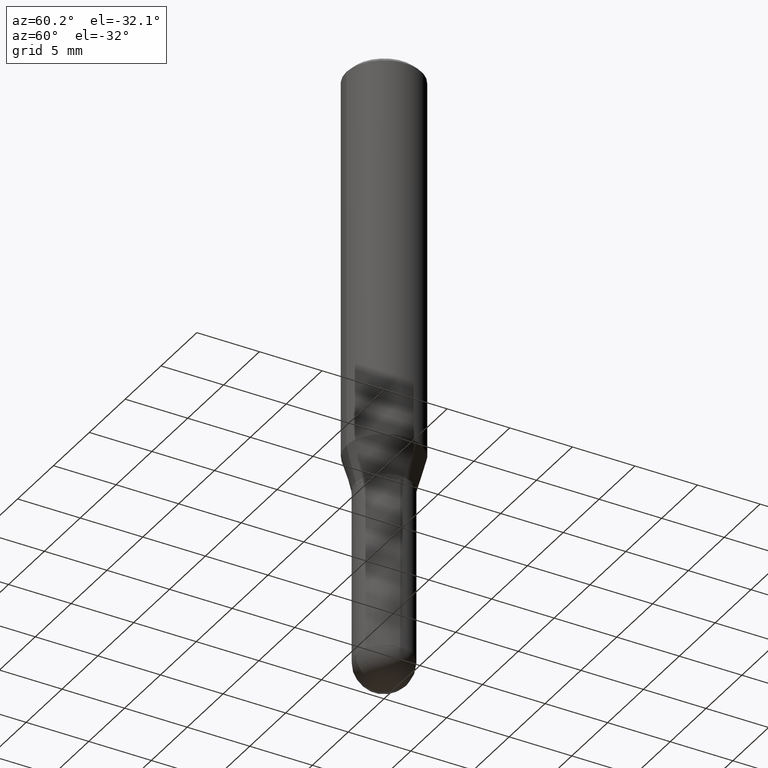
[diagram: clean part render]
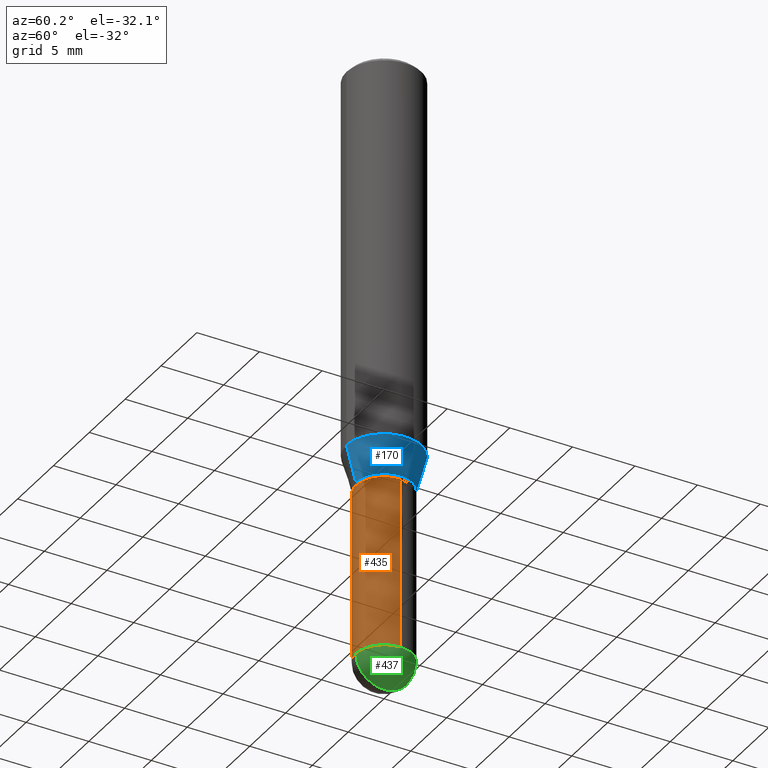
[diagram: same view with three faces highlighted in distinct colors, each labeled with its STEP entity id]
A machine part, auxiliary view with three faces highlighted in distinct colors.
Their STEP definitions:

[orange] entity #435 — the highlighted cylindrical surface (edge-blend (fillet) strip) has radius 2.2504 mm, axis along (-0, 0, 1).
#6 = CARTESIAN_POINT ( 'NONE',  ( -0.08859999999999999820, -4.989125480649882450E-15, -1.338600000000000012 ) ) ;
#7 = ORIENTED_EDGE ( 'NONE', *, *, #15, .T. ) ;
#15 = EDGE_CURVE ( 'NONE', #463, #63, #157, .T. ) ;
#18 = CARTESIAN_POINT ( 'NONE',  ( 0.08859999999999999820, -5.292387413418437689E-15, -1.338600000000000012 ) ) ;
#37 = VERTEX_POINT ( 'NONE', #507 ) ;
#38 = LINE ( 'NONE', #152, #354 ) ;
#55 = EDGE_CURVE ( 'NONE', #72, #383, #240, .T. ) ;
#63 = VERTEX_POINT ( 'NONE', #129 ) ;
#64 = AXIS2_PLACEMENT_3D ( 'NONE', #119, #345, #276 ) ;
#66 = LINE ( 'NONE', #382, #123 ) ;
#72 = VERTEX_POINT ( 'NONE', #6 ) ;
#84 = DIRECTION ( 'NONE',  ( 1.000000000000000000, -6.982962677686270655E-15, 0.000000000000000000 ) ) ;
#93 = EDGE_CURVE ( 'NONE', #63, #37, #360, .T. ) ;
#117 = FACE_OUTER_BOUND ( 'NONE', #270, .T. ) ;
#119 = CARTESIAN_POINT ( 'NONE',  ( 0.000000000000000000, 0.000000000000000000, 0.000000000000000000 ) ) ;
#123 = VECTOR ( 'NONE', #229, 39.37007874015748143 ) ;
#128 = CARTESIAN_POINT ( 'NONE',  ( -0.08859999999999998432, -4.989125480649882450E-15, -1.879899999999999904 ) ) ;
#129 = CARTESIAN_POINT ( 'NONE',  ( -6.295408638834025049E-16, -0.08860000000000653464, -1.879899999999999460 ) ) ;
#152 = CARTESIAN_POINT ( 'NONE',  ( 0.08859999999999998432, -6.186904932430030515E-16, 4.320292623355198064E-30 ) ) ;
#157 = CIRCLE ( 'NONE', #392, 0.08859999999999998432 ) ;
#193 = EDGE_CURVE ( 'NONE', #463, #72, #66, .T. ) ;
#198 = CYLINDRICAL_SURFACE ( 'NONE', #64, 0.08859999999999998432 ) ;
#199 = DIRECTION ( 'NONE',  ( 1.000000000000000000, -6.982962677686270655E-15, 0.000000000000000000 ) ) ;
#229 = DIRECTION ( 'NONE',  ( -2.445468806185136877E-29, 3.491481338843145188E-15, 1.000000000000000000 ) ) ;
#232 = ORIENTED_EDGE ( 'NONE', *, *, #55, .F. ) ;
#240 = CIRCLE ( 'NONE', #405, 0.08859999999999999820 ) ;
#242 = DIRECTION ( 'NONE',  ( -2.445468806185136877E-29, 3.491481338843145188E-15, 1.000000000000000000 ) ) ;
#270 = EDGE_LOOP ( 'NONE', ( #275, #7, #389, #493, #232 ) ) ;
#275 = ORIENTED_EDGE ( 'NONE', *, *, #193, .F. ) ;
#276 = DIRECTION ( 'NONE',  ( 1.000000000000000000, -6.982962677686265922E-15, 4.876176775795935232E-29 ) ) ;
#321 = DIRECTION ( 'NONE',  ( -2.445468806185136597E-29, 3.491481338843145583E-15, 1.000000000000000000 ) ) ;
#345 = DIRECTION ( 'NONE',  ( -2.445468806185136597E-29, 3.491481338843145583E-15, 1.000000000000000000 ) ) ;
#347 = CARTESIAN_POINT ( 'NONE',  ( 4.597236808747438107E-29, -6.563635768891228653E-15, -1.879899999999999904 ) ) ;
#354 = VECTOR ( 'NONE', #242, 39.37007874015748143 ) ;
#360 = CIRCLE ( 'NONE', #385, 0.08859999999999998432 ) ;
#382 = CARTESIAN_POINT ( 'NONE',  ( -0.08859999999999998432, 6.295408638834486533E-16, -4.358176489965845566E-30 ) ) ;
#383 = VERTEX_POINT ( 'NONE', #18 ) ;
#385 = AXIS2_PLACEMENT_3D ( 'NONE', #475, #393, #199 ) ;
#389 = ORIENTED_EDGE ( 'NONE', *, *, #93, .T. ) ;
#392 = AXIS2_PLACEMENT_3D ( 'NONE', #347, #396, #84 ) ;
#393 = DIRECTION ( 'NONE',  ( -2.445468806185136597E-29, 3.491481338843145583E-15, 1.000000000000000000 ) ) ;
#396 = DIRECTION ( 'NONE',  ( -2.445468806185136597E-29, 3.491481338843145583E-15, 1.000000000000000000 ) ) ;
#405 = AXIS2_PLACEMENT_3D ( 'NONE', #436, #321, #477 ) ;
#435 = ADVANCED_FACE ( 'NONE', ( #117 ), #198, .T. ) ;
#436 = CARTESIAN_POINT ( 'NONE',  ( 3.273504543959423913E-29, -4.673696920175434737E-15, -1.338600000000000012 ) ) ;
#443 = EDGE_CURVE ( 'NONE', #37, #383, #38, .T. ) ;
#463 = VERTEX_POINT ( 'NONE', #128 ) ;
#475 = CARTESIAN_POINT ( 'NONE',  ( 4.597236808747438107E-29, -6.563635768891228653E-15, -1.879899999999999904 ) ) ;
#477 = DIRECTION ( 'NONE',  ( 1.000000000000000000, -6.982962677686269077E-15, 0.000000000000000000 ) ) ;
#493 = ORIENTED_EDGE ( 'NONE', *, *, #443, .T. ) ;
#507 = CARTESIAN_POINT ( 'NONE',  ( 0.08859999999999998432, -6.237356837776335042E-15, -1.879899999999999904 ) ) ;

[blue] entity #170 — the highlighted conical surface has half-angle 15 deg.
#8 = EDGE_CURVE ( 'NONE', #154, #424, #318, .T. ) ;
#30 = DIRECTION ( 'NONE',  ( -6.982962677686264344E-15, -1.000000000000000000, 3.083349879982241481E-15 ) ) ;
#41 = DIRECTION ( 'NONE',  ( -2.445896049608158074E-29, 3.490869501944193410E-15, 1.000000000000000000 ) ) ;
#42 = AXIS2_PLACEMENT_3D ( 'NONE', #508, #460, #30 ) ;
#52 = VERTEX_POINT ( 'NONE', #201 ) ;
#71 = CARTESIAN_POINT ( 'NONE',  ( 8.391509709327078780E-16, 0.1180999999999957362, -1.218504501176718824 ) ) ;
#124 = DIRECTION ( 'NONE',  ( 1.839019923739603471E-15, 0.2588190451025254024, 0.9659258262890670910 ) ) ;
#154 = VERTEX_POINT ( 'NONE', #371 ) ;
#162 = CONICAL_SURFACE ( 'NONE', #42, 0.08859999999999991493, 0.2617993877991507401 ) ;
#167 = VECTOR ( 'NONE', #124, 39.37007874015748143 ) ;
#170 = ADVANCED_FACE ( 'NONE', ( #227 ), #162, .T. ) ;
#179 = EDGE_CURVE ( 'NONE', #454, #154, #254, .T. ) ;
#183 = ORIENTED_EDGE ( 'NONE', *, *, #8, .T. ) ;
#201 = CARTESIAN_POINT ( 'NONE',  ( -8.246878922347182859E-16, -0.1181000000000042710, -1.218504501176718158 ) ) ;
#209 = ORIENTED_EDGE ( 'NONE', *, *, #414, .F. ) ;
#215 = DIRECTION ( 'NONE',  ( -1.807323732225332900E-15, -0.2588190451025185745, 0.9659258262890687563 ) ) ;
#220 = ORIENTED_EDGE ( 'NONE', *, *, #256, .F. ) ;
#227 = FACE_OUTER_BOUND ( 'NONE', #498, .T. ) ;
#234 = AXIS2_PLACEMENT_3D ( 'NONE', #510, #41, #502 ) ;
#254 = CIRCLE ( 'NONE', #417, 0.08859999999999991493 ) ;
#256 = EDGE_CURVE ( 'NONE', #454, #52, #328, .T. ) ;
#274 = VECTOR ( 'NONE', #215, 39.37007874015748854 ) ;
#305 = CIRCLE ( 'NONE', #234, 0.1180999999999999966 ) ;
#318 = LINE ( 'NONE', #434, #167 ) ;
#328 = LINE ( 'NONE', #411, #274 ) ;
#338 = DIRECTION ( 'NONE',  ( -6.982962677686264344E-15, -1.000000000000000000, 3.083349879982241481E-15 ) ) ;
#348 = CARTESIAN_POINT ( 'NONE',  ( 3.249617491509398652E-29, -4.637969220283055962E-15, -1.328600000000000225 ) ) ;
#371 = CARTESIAN_POINT ( 'NONE',  ( 7.343459174080941908E-16, 0.08859999999999526588, -1.328600000000000447 ) ) ;
#379 = ORIENTED_EDGE ( 'NONE', *, *, #179, .T. ) ;
#411 = CARTESIAN_POINT ( 'NONE',  ( -6.186904932429700179E-16, -0.08860000000000455012, -1.328599999999999781 ) ) ;
#414 = EDGE_CURVE ( 'NONE', #52, #424, #305, .T. ) ;
#417 = AXIS2_PLACEMENT_3D ( 'NONE', #348, #509, #338 ) ;
#424 = VERTEX_POINT ( 'NONE', #71 ) ;
#434 = CARTESIAN_POINT ( 'NONE',  ( 6.295408638834805036E-16, 0.08859999999999526588, -1.328600000000000447 ) ) ;
#454 = VERTEX_POINT ( 'NONE', #512 ) ;
#460 = DIRECTION ( 'NONE',  ( -2.445896049608158074E-29, 3.490869501944193410E-15, 1.000000000000000000 ) ) ;
#498 = EDGE_LOOP ( 'NONE', ( #379, #183, #209, #220 ) ) ;
#502 = DIRECTION ( 'NONE',  ( -6.982962677686265922E-15, -1.000000000000000000, 3.469747663417777397E-15 ) ) ;
#508 = CARTESIAN_POINT ( 'NONE',  ( 3.249617491509398652E-29, -4.637969220283055962E-15, -1.328600000000000225 ) ) ;
#509 = DIRECTION ( 'NONE',  ( -2.445896049608158074E-29, 3.490869501944193410E-15, 1.000000000000000000 ) ) ;
#510 = CARTESIAN_POINT ( 'NONE',  ( 2.980335345857895291E-29, -4.253640201139528702E-15, -1.218504501176718602 ) ) ;
#512 = CARTESIAN_POINT ( 'NONE',  ( -6.186904932429700179E-16, -0.08860000000000455012, -1.328599999999999781 ) ) ;

[green] entity #437 — the highlighted spherical surface has radius 2.2504 mm.
#1 = DIRECTION ( 'NONE',  ( -2.445468806185136597E-29, 3.491481338843145583E-15, 1.000000000000000000 ) ) ;
#37 = VERTEX_POINT ( 'NONE', #507 ) ;
#61 = CARTESIAN_POINT ( 'NONE',  ( 4.589660035425309027E-29, -6.574486139531674551E-15, -1.879900000000000126 ) ) ;
#63 = VERTEX_POINT ( 'NONE', #129 ) ;
#73 = AXIS2_PLACEMENT_3D ( 'NONE', #78, #469, #384 ) ;
#78 = CARTESIAN_POINT ( 'NONE',  ( 4.589660035425309027E-29, -6.574486139531674551E-15, -1.879900000000000126 ) ) ;
#82 = AXIS2_PLACEMENT_3D ( 'NONE', #353, #163, #247 ) ;
#86 = EDGE_CURVE ( 'NONE', #37, #504, #252, .T. ) ;
#93 = EDGE_CURVE ( 'NONE', #63, #37, #360, .T. ) ;
#108 = EDGE_LOOP ( 'NONE', ( #363, #459, #194, #462 ) ) ;
#127 = EDGE_CURVE ( 'NONE', #235, #504, #218, .T. ) ;
#129 = CARTESIAN_POINT ( 'NONE',  ( -6.295408638834025049E-16, -0.08860000000000653464, -1.879899999999999460 ) ) ;
#130 = AXIS2_PLACEMENT_3D ( 'NONE', #280, #1, #284 ) ;
#163 = DIRECTION ( 'NONE',  ( 1.000000000000000000, -6.982962677686265922E-15, 4.883557194083112340E-29 ) ) ;
#176 = DIRECTION ( 'NONE',  ( -7.105427357600999492E-15, -1.000000000000000000, 0.000000000000000000 ) ) ;
#194 = ORIENTED_EDGE ( 'NONE', *, *, #86, .F. ) ;
#199 = DIRECTION ( 'NONE',  ( 1.000000000000000000, -6.982962677686270655E-15, 0.000000000000000000 ) ) ;
#218 = CIRCLE ( 'NONE', #82, 0.08859999999999998432 ) ;
#219 = CIRCLE ( 'NONE', #464, 0.08859999999999998432 ) ;
#235 = VERTEX_POINT ( 'NONE', #268 ) ;
#247 = DIRECTION ( 'NONE',  ( 6.982962677686265133E-15, 1.000000000000000000, 0.000000000000000000 ) ) ;
#252 = CIRCLE ( 'NONE', #130, 0.08859999999999998432 ) ;
#268 = CARTESIAN_POINT ( 'NONE',  ( 4.810116958314376734E-29, -6.878406200832954656E-15, -1.968500000000000139 ) ) ;
#280 = CARTESIAN_POINT ( 'NONE',  ( 4.597236808747438107E-29, -6.563635768891228653E-15, -1.879899999999999904 ) ) ;
#284 = DIRECTION ( 'NONE',  ( 1.000000000000000000, -6.982962677686270655E-15, 0.000000000000000000 ) ) ;
#332 = DIRECTION ( 'NONE',  ( -1.000000000000000000, 7.105427357601001070E-15, -4.926315508542082329E-29 ) ) ;
#353 = CARTESIAN_POINT ( 'NONE',  ( 4.589660035425309027E-29, -6.574486139531674551E-15, -1.879900000000000126 ) ) ;
#358 = EDGE_CURVE ( 'NONE', #235, #63, #219, .T. ) ;
#360 = CIRCLE ( 'NONE', #385, 0.08859999999999998432 ) ;
#363 = ORIENTED_EDGE ( 'NONE', *, *, #358, .F. ) ;
#384 = DIRECTION ( 'NONE',  ( 6.982962677686265133E-15, 1.000000000000000000, -3.083349879982239114E-15 ) ) ;
#385 = AXIS2_PLACEMENT_3D ( 'NONE', #475, #393, #199 ) ;
#393 = DIRECTION ( 'NONE',  ( -2.445468806185136597E-29, 3.491481338843145583E-15, 1.000000000000000000 ) ) ;
#430 = SPHERICAL_SURFACE ( 'NONE', #73, 0.08859999999999998432 ) ;
#437 = ADVANCED_FACE ( 'NONE', ( #461 ), #430, .T. ) ;
#459 = ORIENTED_EDGE ( 'NONE', *, *, #127, .T. ) ;
#461 = FACE_OUTER_BOUND ( 'NONE', #108, .T. ) ;
#462 = ORIENTED_EDGE ( 'NONE', *, *, #93, .F. ) ;
#464 = AXIS2_PLACEMENT_3D ( 'NONE', #61, #332, #176 ) ;
#469 = DIRECTION ( 'NONE',  ( -1.000000000000000000, 6.982962677686265133E-15, -4.883557194083112340E-29 ) ) ;
#475 = CARTESIAN_POINT ( 'NONE',  ( 4.597236808747438107E-29, -6.563635768891228653E-15, -1.879899999999999904 ) ) ;
#478 = CARTESIAN_POINT ( 'NONE',  ( 6.186904932430488054E-16, 0.08859999999999342013, -1.879900000000000126 ) ) ;
#504 = VERTEX_POINT ( 'NONE', #478 ) ;
#507 = CARTESIAN_POINT ( 'NONE',  ( 0.08859999999999998432, -6.237356837776335042E-15, -1.879899999999999904 ) ) ;